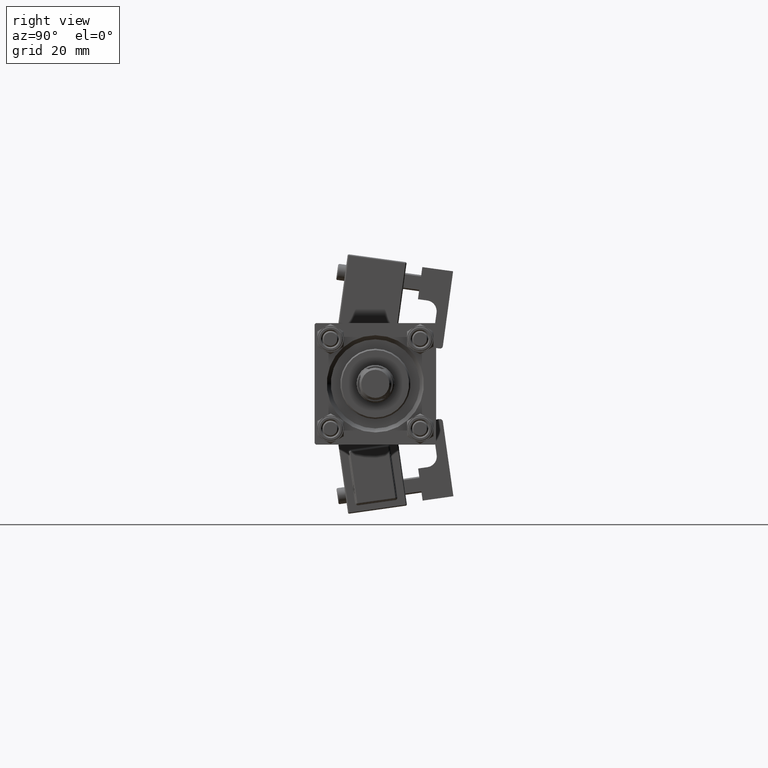
[diagram: clean part render]
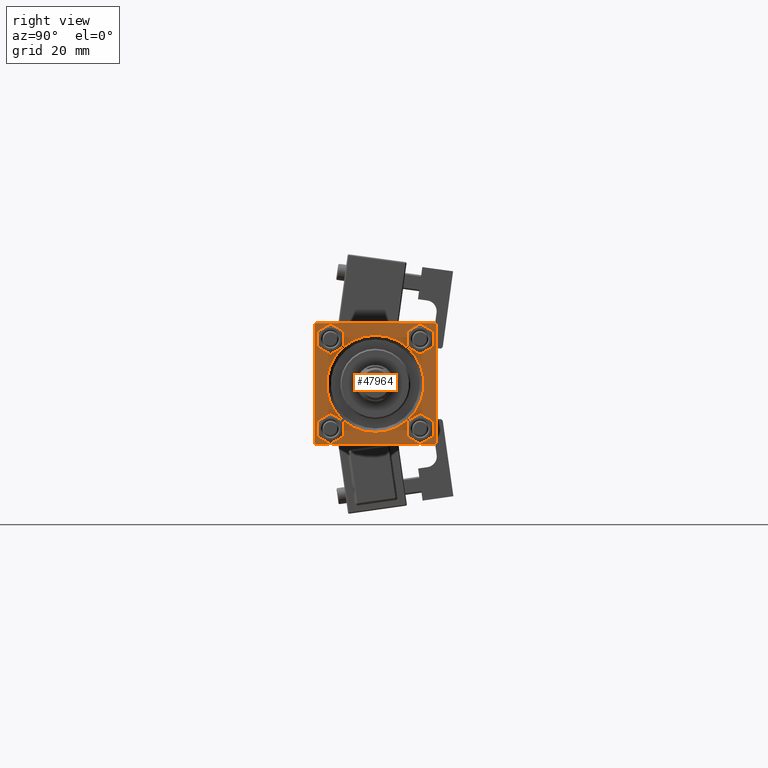
[diagram: same view with one face highlighted and labeled with its STEP entity id]
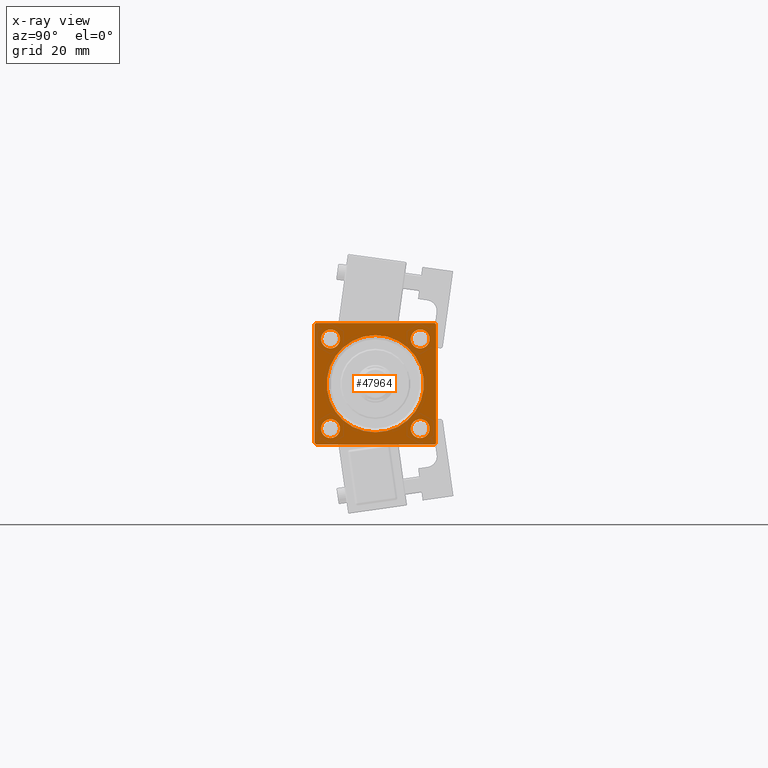
[diagram: x-ray of the same camera — body ghosted, the highlighted face saturated]
A machine part, right view. The second image highlights one B-rep face of the part: STEP entity #47964.
The next image is the same camera in x-ray: the body ghosted, the highlighted face saturated — about 0% of this face is hidden behind the body in this view.
In plain terms, the highlighted planar face has unit normal (-1, 0, 0).
Its self-contained STEP definition (entity closure, byte-faithful):
#212 = AXIS2_PLACEMENT_3D ( 'NONE', #3340, #32769, #53333 ) ;
#270 = EDGE_LOOP ( 'NONE', ( #43747, #637 ) ) ;
#637 = ORIENTED_EDGE ( 'NONE', *, *, #42673, .T. ) ;
#729 = CARTESIAN_POINT ( 'NONE',  ( 183.0000000000000000, 22.00000000000000355, -22.49999999999999645 ) ) ;
#1192 = VERTEX_POINT ( 'NONE', #29267 ) ;
#1504 = ORIENTED_EDGE ( 'NONE', *, *, #32520, .T. ) ;
#1936 = DIRECTION ( 'NONE',  ( 0.000000000000000000, 0.000000000000000000, 1.000000000000000000 ) ) ;
#1995 = CARTESIAN_POINT ( 'NONE',  ( 183.0000000000000000, -16.59999999999999076, -13.10000000000003162 ) ) ;
#2213 = CARTESIAN_POINT ( 'NONE',  ( 183.0000000000000000, -22.49999999999999645, 22.49999999999999289 ) ) ;
#2286 = DIRECTION ( 'NONE',  ( 0.000000000000000000, 0.000000000000000000, 1.000000000000000000 ) ) ;
#2505 = DIRECTION ( 'NONE',  ( -0.000000000000000000, 0.000000000000000000, 1.000000000000000000 ) ) ;
#2770 = CIRCLE ( 'NONE', #51877, 3.499999999999975131 ) ;
#3340 = CARTESIAN_POINT ( 'NONE',  ( 183.0000000000000000, 16.59999999999999787, -16.60000000000000497 ) ) ;
#3565 = ORIENTED_EDGE ( 'NONE', *, *, #39093, .T. ) ;
#3598 = EDGE_LOOP ( 'NONE', ( #1504, #8398, #25772, #3565, #30242, #50117, #17628, #46434 ) ) ;
#4125 = CARTESIAN_POINT ( 'NONE',  ( 183.0000000000000000, 16.59999999999999787, 13.10000000000002807 ) ) ;
#4145 = EDGE_LOOP ( 'NONE', ( #10197, #35542 ) ) ;
#4170 = VERTEX_POINT ( 'NONE', #31966 ) ;
#4171 = CARTESIAN_POINT ( 'NONE',  ( 183.0000000000000000, -16.59999999999999076, 16.60000000000000853 ) ) ;
#4609 = CIRCLE ( 'NONE', #212, 3.499999999999975131 ) ;
#4986 = VECTOR ( 'NONE', #28106, 1000.000000000000114 ) ;
#5015 = EDGE_CURVE ( 'NONE', #42090, #9683, #24797, .T. ) ;
#5242 = EDGE_CURVE ( 'NONE', #39899, #4170, #11555, .T. ) ;
#5572 = VECTOR ( 'NONE', #13237, 1000.000000000000000 ) ;
#5607 = CIRCLE ( 'NONE', #34626, 3.499999999999975131 ) ;
#5847 = LINE ( 'NONE', #27845, #4986 ) ;
#5906 = VECTOR ( 'NONE', #32781, 1000.000000000000000 ) ;
#5990 = CARTESIAN_POINT ( 'NONE',  ( 183.0000000000000000, 22.00000000000000355, 22.50000000000000355 ) ) ;
#6385 = LINE ( 'NONE', #43470, #53470 ) ;
#6740 = DIRECTION ( 'NONE',  ( -1.000000000000000000, 0.000000000000000000, -0.000000000000000000 ) ) ;
#6880 = CARTESIAN_POINT ( 'NONE',  ( 183.0000000000000000, 0.000000000000000000, 0.000000000000000000 ) ) ;
#6943 = DIRECTION ( 'NONE',  ( 0.000000000000000000, 0.000000000000000000, 1.000000000000000000 ) ) ;
#7418 = DIRECTION ( 'NONE',  ( 0.000000000000000000, 0.7071067811865426878, -0.7071067811865524577 ) ) ;
#8398 = ORIENTED_EDGE ( 'NONE', *, *, #5242, .T. ) ;
#8464 = CARTESIAN_POINT ( 'NONE',  ( 183.0000000000000000, 2.204364238465237794E-15, 18.00000000000001421 ) ) ;
#8996 = EDGE_CURVE ( 'NONE', #41056, #39600, #4609, .T. ) ;
#9524 = DIRECTION ( 'NONE',  ( -1.000000000000000000, 0.000000000000000000, -0.000000000000000000 ) ) ;
#9583 = DIRECTION ( 'NONE',  ( 0.000000000000000000, -0.7071067811865474617, 0.7071067811865474617 ) ) ;
#9683 = VERTEX_POINT ( 'NONE', #1995 ) ;
#10197 = ORIENTED_EDGE ( 'NONE', *, *, #5015, .T. ) ;
#10325 = AXIS2_PLACEMENT_3D ( 'NONE', #22548, #39291, #18413 ) ;
#11016 = EDGE_CURVE ( 'NONE', #28081, #19618, #13476, .T. ) ;
#11035 = FACE_BOUND ( 'NONE', #39400, .T. ) ;
#11166 = CIRCLE ( 'NONE', #41862, 18.00000000000001421 ) ;
#11453 = VERTEX_POINT ( 'NONE', #42609 ) ;
#11555 = LINE ( 'NONE', #45047, #30899 ) ;
#11576 = FACE_BOUND ( 'NONE', #270, .T. ) ;
#11940 = EDGE_CURVE ( 'NONE', #42293, #33284, #20555, .T. ) ;
#12363 = EDGE_CURVE ( 'NONE', #24905, #4170, #30269, .T. ) ;
#13025 = EDGE_CURVE ( 'NONE', #39600, #41056, #5607, .T. ) ;
#13237 = DIRECTION ( 'NONE',  ( 0.000000000000000000, -1.000000000000000000, -7.709882115452476934E-17 ) ) ;
#13476 = CIRCLE ( 'NONE', #44170, 18.00000000000001421 ) ;
#13985 = CIRCLE ( 'NONE', #50830, 3.499999999999975131 ) ;
#14478 = CARTESIAN_POINT ( 'NONE',  ( 183.0000000000000000, -22.49999999999999645, -21.99999999999995026 ) ) ;
#14884 = PLANE ( 'NONE',  #51926 ) ;
#15152 = DIRECTION ( 'NONE',  ( 0.000000000000000000, 0.000000000000000000, -1.000000000000000000 ) ) ;
#15274 = DIRECTION ( 'NONE',  ( 0.000000000000000000, 0.000000000000000000, 1.000000000000000000 ) ) ;
#15620 = EDGE_LOOP ( 'NONE', ( #51535, #44604 ) ) ;
#16173 = DIRECTION ( 'NONE',  ( 0.000000000000000000, 0.000000000000000000, 1.000000000000000000 ) ) ;
#17628 = ORIENTED_EDGE ( 'NONE', *, *, #31254, .T. ) ;
#18055 = CARTESIAN_POINT ( 'NONE',  ( 183.0000000000000000, 0.000000000000000000, -18.00000000000001421 ) ) ;
#18413 = DIRECTION ( 'NONE',  ( 0.000000000000000000, 0.000000000000000000, 1.000000000000000000 ) ) ;
#18629 = AXIS2_PLACEMENT_3D ( 'NONE', #48695, #24541, #6943 ) ;
#19055 = EDGE_CURVE ( 'NONE', #52506, #35097, #5847, .T. ) ;
#19275 = CARTESIAN_POINT ( 'NONE',  ( 183.0000000000000000, 22.50000000000000355, 22.50000000000000355 ) ) ;
#19618 = VERTEX_POINT ( 'NONE', #8464 ) ;
#19864 = EDGE_CURVE ( 'NONE', #19618, #28081, #11166, .T. ) ;
#20223 = DIRECTION ( 'NONE',  ( 0.000000000000000000, 0.000000000000000000, 1.000000000000000000 ) ) ;
#20555 = CIRCLE ( 'NONE', #45929, 3.499999999999975131 ) ;
#20674 = LINE ( 'NONE', #24805, #5906 ) ;
#22242 = LINE ( 'NONE', #5990, #48408 ) ;
#22548 = CARTESIAN_POINT ( 'NONE',  ( 183.0000000000000000, -16.59999999999999076, -16.60000000000000853 ) ) ;
#22792 = ORIENTED_EDGE ( 'NONE', *, *, #11940, .T. ) ;
#23455 = CARTESIAN_POINT ( 'NONE',  ( 183.0000000000000000, -16.59999999999999076, 16.60000000000000853 ) ) ;
#24541 = DIRECTION ( 'NONE',  ( -1.000000000000000000, 0.000000000000000000, -0.000000000000000000 ) ) ;
#24797 = CIRCLE ( 'NONE', #18629, 3.499999999999975131 ) ;
#24805 = CARTESIAN_POINT ( 'NONE',  ( 183.0000000000000000, 22.50000000000000355, 22.50000000000000355 ) ) ;
#24905 = VERTEX_POINT ( 'NONE', #729 ) ;
#24962 = CARTESIAN_POINT ( 'NONE',  ( 183.0000000000000000, -16.59999999999999076, 20.09999999999998366 ) ) ;
#25401 = CARTESIAN_POINT ( 'NONE',  ( 183.0000000000000000, -21.99999999999998224, 22.49999999999999289 ) ) ;
#25538 = CARTESIAN_POINT ( 'NONE',  ( 183.0000000000000000, 22.00000000000000355, 22.50000000000000355 ) ) ;
#25772 = ORIENTED_EDGE ( 'NONE', *, *, #12363, .F. ) ;
#25811 = EDGE_CURVE ( 'NONE', #1192, #27194, #13985, .T. ) ;
#26601 = VECTOR ( 'NONE', #15152, 1000.000000000000000 ) ;
#26702 = CARTESIAN_POINT ( 'NONE',  ( 183.0000000000000000, 22.50000000000000355, -22.49999999999999645 ) ) ;
#26971 = LINE ( 'NONE', #2213, #54175 ) ;
#27194 = VERTEX_POINT ( 'NONE', #24962 ) ;
#27533 = FACE_BOUND ( 'NONE', #4145, .T. ) ;
#27845 = CARTESIAN_POINT ( 'NONE',  ( 183.0000000000000000, -22.49999999999999645, 21.99999999999999289 ) ) ;
#28081 = VERTEX_POINT ( 'NONE', #18055 ) ;
#28106 = DIRECTION ( 'NONE',  ( -0.000000000000000000, -0.7071067811865474617, -0.7071067811865474617 ) ) ;
#29267 = CARTESIAN_POINT ( 'NONE',  ( 183.0000000000000000, -16.59999999999999076, 13.10000000000003162 ) ) ;
#29630 = ORIENTED_EDGE ( 'NONE', *, *, #13025, .T. ) ;
#30242 = ORIENTED_EDGE ( 'NONE', *, *, #47065, .F. ) ;
#30269 = LINE ( 'NONE', #26702, #5572 ) ;
#30406 = CARTESIAN_POINT ( 'NONE',  ( 183.0000000000000000, 16.59999999999999787, -16.60000000000000497 ) ) ;
#30585 = DIRECTION ( 'NONE',  ( -1.000000000000000000, 0.000000000000000000, -0.000000000000000000 ) ) ;
#30899 = VECTOR ( 'NONE', #7418, 1000.000000000000000 ) ;
#30946 = EDGE_CURVE ( 'NONE', #9683, #42090, #37512, .T. ) ;
#31254 = EDGE_CURVE ( 'NONE', #31657, #52506, #20674, .T. ) ;
#31648 = FACE_OUTER_BOUND ( 'NONE', #3598, .T. ) ;
#31657 = VERTEX_POINT ( 'NONE', #25538 ) ;
#31966 = CARTESIAN_POINT ( 'NONE',  ( 183.0000000000000000, -21.99999999999995381, -22.50000000000000000 ) ) ;
#32520 = EDGE_CURVE ( 'NONE', #35097, #39899, #26971, .T. ) ;
#32663 = CARTESIAN_POINT ( 'NONE',  ( 183.0000000000000000, 16.59999999999999787, 16.60000000000000497 ) ) ;
#32769 = DIRECTION ( 'NONE',  ( -1.000000000000000000, 0.000000000000000000, -0.000000000000000000 ) ) ;
#32781 = DIRECTION ( 'NONE',  ( 0.000000000000000000, -1.000000000000000000, -2.312964634635742957E-16 ) ) ;
#33284 = VERTEX_POINT ( 'NONE', #41348 ) ;
#33946 = CARTESIAN_POINT ( 'NONE',  ( 183.0000000000000000, 0.000000000000000000, 0.000000000000000000 ) ) ;
#34626 = AXIS2_PLACEMENT_3D ( 'NONE', #30406, #9524, #2286 ) ;
#35097 = VERTEX_POINT ( 'NONE', #52562 ) ;
#35216 = ORIENTED_EDGE ( 'NONE', *, *, #8996, .T. ) ;
#35265 = DIRECTION ( 'NONE',  ( 0.000000000000000000, 0.000000000000000000, 1.000000000000000000 ) ) ;
#35527 = DIRECTION ( 'NONE',  ( -0.000000000000000000, 0.7071067811865474617, 0.7071067811865474617 ) ) ;
#35542 = ORIENTED_EDGE ( 'NONE', *, *, #30946, .T. ) ;
#36048 = FACE_BOUND ( 'NONE', #15620, .T. ) ;
#37512 = CIRCLE ( 'NONE', #10325, 3.499999999999975131 ) ;
#37978 = DIRECTION ( 'NONE',  ( 0.000000000000000000, 0.000000000000000000, 1.000000000000000000 ) ) ;
#39093 = EDGE_CURVE ( 'NONE', #24905, #41680, #6385, .T. ) ;
#39291 = DIRECTION ( 'NONE',  ( -1.000000000000000000, 0.000000000000000000, -0.000000000000000000 ) ) ;
#39400 = EDGE_LOOP ( 'NONE', ( #35216, #29630 ) ) ;
#39600 = VERTEX_POINT ( 'NONE', #51769 ) ;
#39899 = VERTEX_POINT ( 'NONE', #14478 ) ;
#40140 = DIRECTION ( 'NONE',  ( 0.000000000000000000, 0.000000000000000000, -1.000000000000000000 ) ) ;
#41056 = VERTEX_POINT ( 'NONE', #46289 ) ;
#41348 = CARTESIAN_POINT ( 'NONE',  ( 183.0000000000000000, 16.59999999999999787, 20.09999999999998010 ) ) ;
#41637 = DIRECTION ( 'NONE',  ( -1.000000000000000000, 0.000000000000000000, -0.000000000000000000 ) ) ;
#41680 = VERTEX_POINT ( 'NONE', #45351 ) ;
#41862 = AXIS2_PLACEMENT_3D ( 'NONE', #33946, #41637, #20223 ) ;
#42090 = VERTEX_POINT ( 'NONE', #50085 ) ;
#42223 = AXIS2_PLACEMENT_3D ( 'NONE', #23455, #30585, #35265 ) ;
#42293 = VERTEX_POINT ( 'NONE', #4125 ) ;
#42356 = DIRECTION ( 'NONE',  ( -1.000000000000000000, 0.000000000000000000, -0.000000000000000000 ) ) ;
#42609 = CARTESIAN_POINT ( 'NONE',  ( 183.0000000000000000, 22.50000000000000355, 22.00000000000000355 ) ) ;
#42673 = EDGE_CURVE ( 'NONE', #27194, #1192, #43076, .T. ) ;
#43076 = CIRCLE ( 'NONE', #42223, 3.499999999999975131 ) ;
#43248 = ORIENTED_EDGE ( 'NONE', *, *, #47439, .T. ) ;
#43470 = CARTESIAN_POINT ( 'NONE',  ( 183.0000000000000000, 22.50000000000000355, -21.99999999999999645 ) ) ;
#43747 = ORIENTED_EDGE ( 'NONE', *, *, #25811, .T. ) ;
#43984 = FACE_BOUND ( 'NONE', #51397, .T. ) ;
#44170 = AXIS2_PLACEMENT_3D ( 'NONE', #6880, #48898, #1936 ) ;
#44281 = EDGE_CURVE ( 'NONE', #11453, #31657, #22242, .T. ) ;
#44604 = ORIENTED_EDGE ( 'NONE', *, *, #19864, .T. ) ;
#44788 = DIRECTION ( 'NONE',  ( -1.000000000000000000, 0.000000000000000000, -0.000000000000000000 ) ) ;
#44988 = DIRECTION ( 'NONE',  ( -1.000000000000000000, 0.000000000000000000, -0.000000000000000000 ) ) ;
#45047 = CARTESIAN_POINT ( 'NONE',  ( 183.0000000000000000, -21.99999999999996803, -22.50000000000000000 ) ) ;
#45351 = CARTESIAN_POINT ( 'NONE',  ( 183.0000000000000000, 22.50000000000000355, -21.99999999999998224 ) ) ;
#45929 = AXIS2_PLACEMENT_3D ( 'NONE', #49293, #6740, #15274 ) ;
#46289 = CARTESIAN_POINT ( 'NONE',  ( 183.0000000000000000, 16.59999999999999787, -20.09999999999998010 ) ) ;
#46434 = ORIENTED_EDGE ( 'NONE', *, *, #19055, .T. ) ;
#47065 = EDGE_CURVE ( 'NONE', #11453, #41680, #47275, .T. ) ;
#47275 = LINE ( 'NONE', #19275, #26601 ) ;
#47439 = EDGE_CURVE ( 'NONE', #33284, #42293, #2770, .T. ) ;
#47964 = ADVANCED_FACE ( 'NONE', ( #27533, #11035, #43984, #11576, #36048, #31648 ), #14884, .F. ) ;
#48408 = VECTOR ( 'NONE', #9583, 1000.000000000000114 ) ;
#48695 = CARTESIAN_POINT ( 'NONE',  ( 183.0000000000000000, -16.59999999999999076, -16.60000000000000853 ) ) ;
#48898 = DIRECTION ( 'NONE',  ( -1.000000000000000000, 0.000000000000000000, -0.000000000000000000 ) ) ;
#49176 = CARTESIAN_POINT ( 'NONE',  ( 183.0000000000000000, 0.000000000000000000, 0.000000000000000000 ) ) ;
#49293 = CARTESIAN_POINT ( 'NONE',  ( 183.0000000000000000, 16.59999999999999787, 16.60000000000000497 ) ) ;
#50085 = CARTESIAN_POINT ( 'NONE',  ( 183.0000000000000000, -16.59999999999999076, -20.09999999999998366 ) ) ;
#50117 = ORIENTED_EDGE ( 'NONE', *, *, #44281, .T. ) ;
#50830 = AXIS2_PLACEMENT_3D ( 'NONE', #4171, #42356, #37978 ) ;
#51397 = EDGE_LOOP ( 'NONE', ( #22792, #43248 ) ) ;
#51535 = ORIENTED_EDGE ( 'NONE', *, *, #11016, .T. ) ;
#51769 = CARTESIAN_POINT ( 'NONE',  ( 183.0000000000000000, 16.59999999999999787, -13.10000000000002807 ) ) ;
#51877 = AXIS2_PLACEMENT_3D ( 'NONE', #32663, #44988, #16173 ) ;
#51926 = AXIS2_PLACEMENT_3D ( 'NONE', #49176, #44788, #2505 ) ;
#52506 = VERTEX_POINT ( 'NONE', #25401 ) ;
#52562 = CARTESIAN_POINT ( 'NONE',  ( 183.0000000000000000, -22.49999999999999645, 21.99999999999999289 ) ) ;
#53333 = DIRECTION ( 'NONE',  ( 0.000000000000000000, 0.000000000000000000, 1.000000000000000000 ) ) ;
#53470 = VECTOR ( 'NONE', #35527, 1000.000000000000114 ) ;
#54175 = VECTOR ( 'NONE', #40140, 1000.000000000000000 ) ;